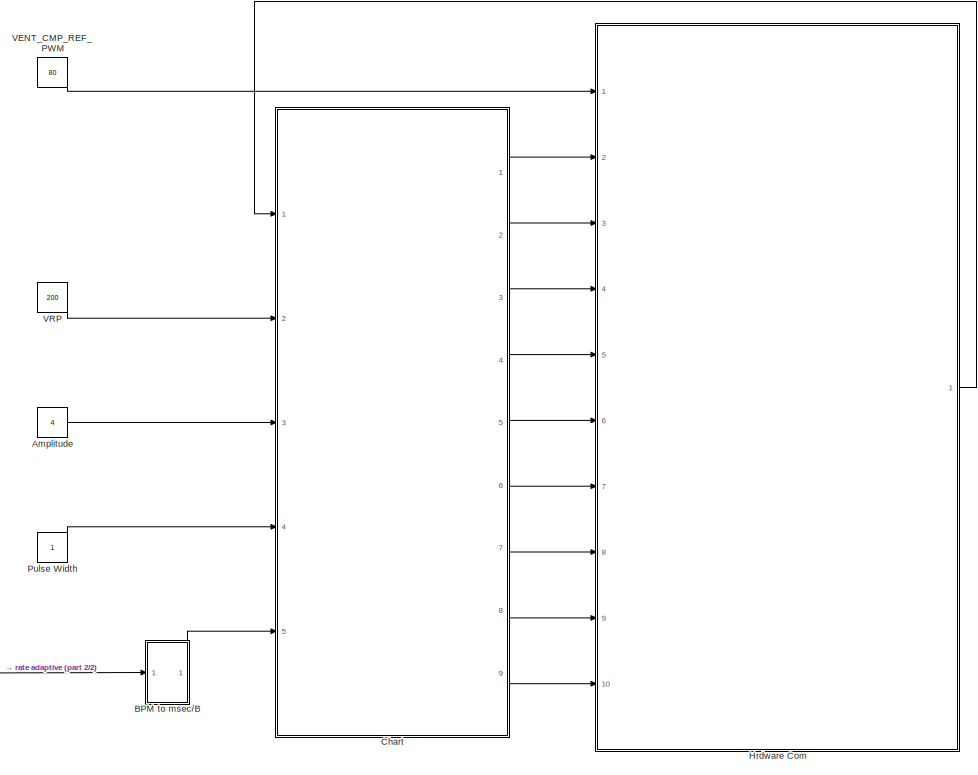
[diagram: root canvas - part 1/2, right side, full height]
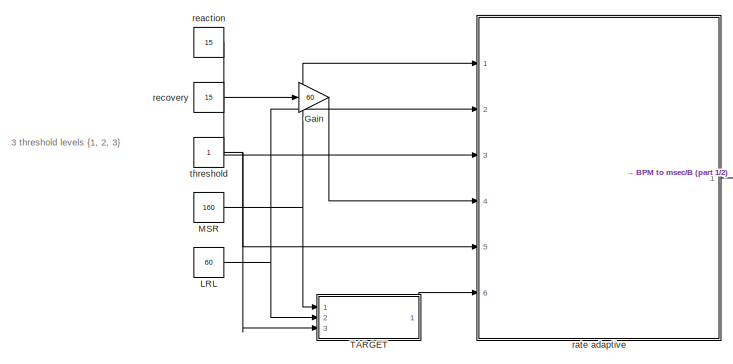
[diagram: root canvas - part 2/2, middle left region]
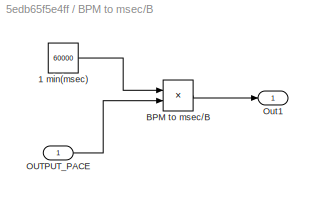
MODEL slx_5edb65f5e4ff
KIND model
CONFIG AbsTol = auto
CONFIG EnableMultiTasking = on
CONFIG FixedStep = 0.001
CONFIG MaxStep = auto
CONFIG MinStep = auto
CONFIG RelTol = 1e-3
CONFIG SampleTimeConstraint = Unconstrained
CONFIG SolverName = FixedStepAuto
CONFIG StartTime = 0.0
CONFIG StopTime = inf
BLOCK [Constant] Amplitude
  OutDataTypeStr = double
  Value = 4
BLOCK [SubSystem] BPM to msec//B 
  Ports = [1, 1]
  RequestExecContextInheritance = off
BLOCK [Constant] BPM to msec//B /1 min(msec)
  OutDataTypeStr = double
  Value = 60000
BLOCK [Product] BPM to msec//B /BPM to msec//B 
  Inputs = */
  OutDataTypeStr = uint16
  Ports = [2, 1]
  RndMeth = Nearest
BLOCK [Inport] BPM to msec//B /OUTPUT_PACE
BLOCK [Outport] BPM to msec//B /Out1
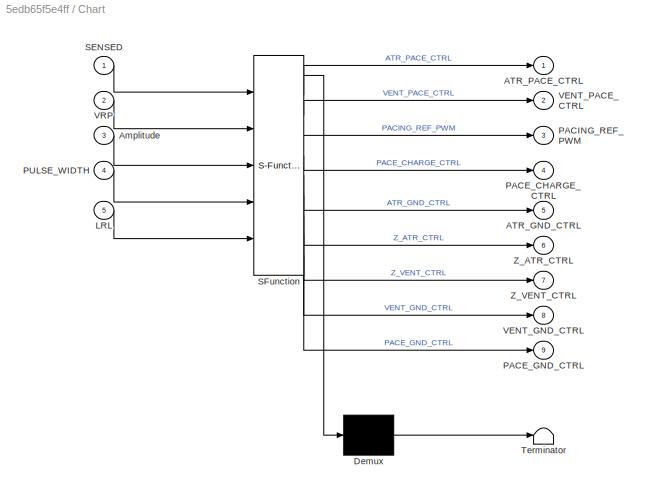
BLOCK [SubSystem] Chart
  ErrorFcn = Stateflow.Translate.translate
  PermitHierarchicalResolution = ExplicitOnly
  Ports = [5, 9]
  RequestExecContextInheritance = off
  SFBlockType = Chart
  TreatAsAtomicUnit = on
BLOCK [Demux] Chart/ Demux 
  Outputs = 1
  Ports = [1, 1]
BLOCK [S-Function] Chart/ SFunction 
  EnableBusSupport = off
  FunctionName = sf_sfun
  PortCounts = [5 10]
  Ports = [5, 10]
  SFcnIsStateOwnerBlock = off
  SFunctionDeploymentMode = off
  Tag = Stateflow S-Function 3
BLOCK [Terminator] Chart/ Terminator 
BLOCK [Outport] Chart/ATR_GND_CTRL
  Port = 5
BLOCK [Outport] Chart/ATR_PACE_CTRL
BLOCK [Inport] Chart/Amplitude
  Port = 3
BLOCK [Inport] Chart/LRL
  Port = 5
BLOCK [Outport] Chart/PACE_CHARGE_CTRL
  Port = 4
BLOCK [Outport] Chart/PACE_GND_CTRL
  Port = 9
BLOCK [Outport] Chart/PACING_REF_PWM
  Port = 3
BLOCK [Inport] Chart/PULSE_WIDTH
  Port = 4
BLOCK [Inport] Chart/SENSED
BLOCK [Outport] Chart/VENT_GND_CTRL
  Port = 8
BLOCK [Outport] Chart/VENT_PACE_CTRL
  Port = 2
BLOCK [Inport] Chart/VRP
  Port = 2
BLOCK [Outport] Chart/Z_ATR_CTRL
  Port = 6
BLOCK [Outport] Chart/Z_VENT_CTRL
  Port = 7
BLOCK [Gain] Gain
  Gain = 60
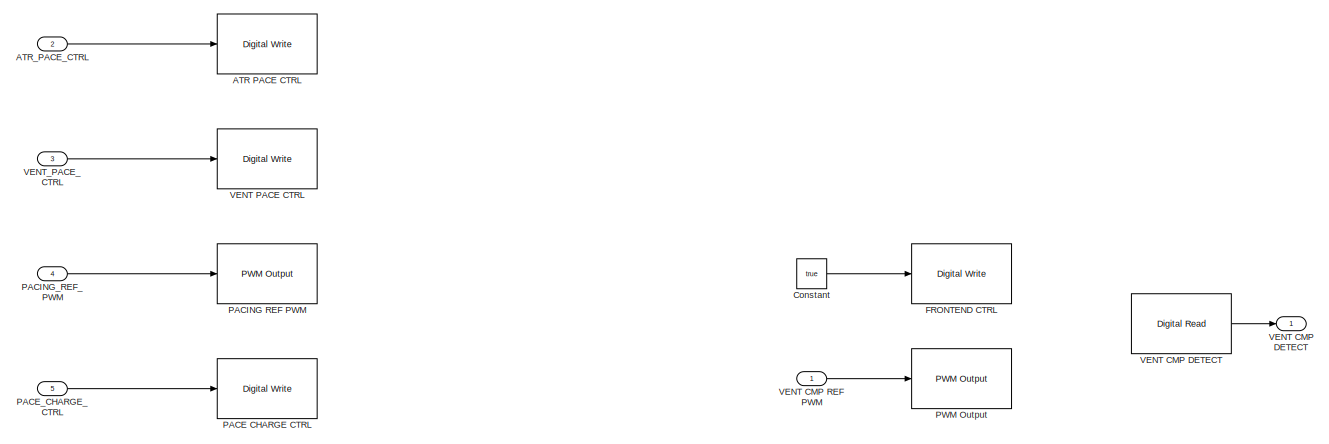
[diagram: Hrdware Com - part 1/2, full width, top band]
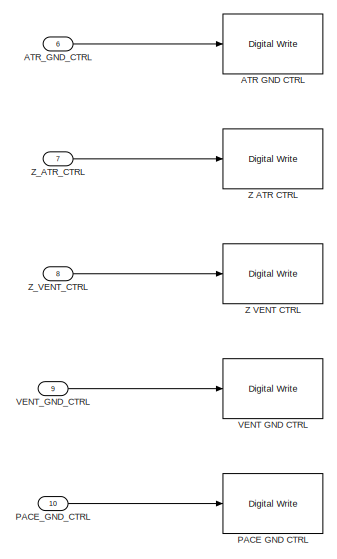
[diagram: Hrdware Com - part 2/2, bottom left region]
BLOCK [SubSystem] Hrdware Com
  Ports = [10, 1]
  RequestExecContextInheritance = off
BLOCK [Reference] Hrdware Com/ATR GND CTRL   REF=frdmk64flib/Digital Write
  Ports = [1]
  SourceBlock = frdmk64flib/Digital Write
  SourceProductBaseCode = EC_FRDM_K64F
  SourceType = freedomk64f.DigitalWrite
BLOCK [Reference] Hrdware Com/ATR PACE CTRL  REF=frdmk64flib/Digital Write
  Ports = [1]
  SourceBlock = frdmk64flib/Digital Write
  SourceProductBaseCode = EC_FRDM_K64F
  SourceType = freedomk64f.DigitalWrite
BLOCK [Inport] Hrdware Com/ATR_GND_CTRL
  Port = 6
BLOCK [Inport] Hrdware Com/ATR_PACE_CTRL
  Port = 2
BLOCK [Constant] Hrdware Com/Constant
  OutDataTypeStr = boolean
  Value = true
BLOCK [Reference] Hrdware Com/FRONTEND CTRL  REF=frdmk64flib/Digital Write
  Ports = [1]
  SourceBlock = frdmk64flib/Digital Write
  SourceProductBaseCode = EC_FRDM_K64F
  SourceType = freedomk64f.DigitalWrite
BLOCK [Reference] Hrdware Com/PACE CHARGE CTRL  REF=frdmk64flib/Digital Write
  Ports = [1]
  SourceBlock = frdmk64flib/Digital Write
  SourceProductBaseCode = EC_FRDM_K64F
  SourceType = freedomk64f.DigitalWrite
BLOCK [Reference] Hrdware Com/PACE GND CTRL  REF=frdmk64flib/Digital Write
  Ports = [1]
  SourceBlock = frdmk64flib/Digital Write
  SourceProductBaseCode = EC_FRDM_K64F
  SourceType = freedomk64f.DigitalWrite
BLOCK [Inport] Hrdware Com/PACE_CHARGE_CTRL
  Port = 5
BLOCK [Inport] Hrdware Com/PACE_GND_CTRL
  Port = 10
BLOCK [Reference] Hrdware Com/PACING REF PWM  REF=frdmk64flib/PWM Output
  Ports = [1]
  SourceBlock = frdmk64flib/PWM Output
  SourceProductBaseCode = EC_FRDM_K64F
  SourceType = freedomk64f.PWMOutput
BLOCK [Inport] Hrdware Com/PACING_REF_PWM
  Port = 4
BLOCK [Reference] Hrdware Com/PWM Output  REF=frdmk64flib/PWM Output
  Ports = [1]
  SourceBlock = frdmk64flib/PWM Output
  SourceProductBaseCode = EC_FRDM_K64F
  SourceType = freedomk64f.PWMOutput
BLOCK [Reference] Hrdware Com/VENT CMP DETECT  REF=frdmk64flib/Digital Read
  Ports = [0, 1]
  SourceBlock = frdmk64flib/Digital Read
  SourceProductBaseCode = EC_FRDM_K64F
  SourceType = freedomk64f.DigitalRead
BLOCK [Outport] Hrdware Com/VENT CMP DETECT 
  OutDataTypeStr = boolean
  PortDimensions = 1
BLOCK [Inport] Hrdware Com/VENT CMP REF PWM
BLOCK [Reference] Hrdware Com/VENT GND CTRL  REF=frdmk64flib/Digital Write
  Ports = [1]
  SourceBlock = frdmk64flib/Digital Write
  SourceProductBaseCode = EC_FRDM_K64F
  SourceType = freedomk64f.DigitalWrite
BLOCK [Reference] Hrdware Com/VENT PACE CTRL  REF=frdmk64flib/Digital Write
  Ports = [1]
  SourceBlock = frdmk64flib/Digital Write
  SourceProductBaseCode = EC_FRDM_K64F
  SourceType = freedomk64f.DigitalWrite
BLOCK [Inport] Hrdware Com/VENT_GND_CTRL
  Port = 9
BLOCK [Inport] Hrdware Com/VENT_PACE_CTRL
  Port = 3
BLOCK [Reference] Hrdware Com/Z ATR CTRL   REF=frdmk64flib/Digital Write
  Ports = [1]
  SourceBlock = frdmk64flib/Digital Write
  SourceProductBaseCode = EC_FRDM_K64F
  SourceType = freedomk64f.DigitalWrite
BLOCK [Reference] Hrdware Com/Z VENT CTRL   REF=frdmk64flib/Digital Write
  Ports = [1]
  SourceBlock = frdmk64flib/Digital Write
  SourceProductBaseCode = EC_FRDM_K64F
  SourceType = freedomk64f.DigitalWrite
BLOCK [Inport] Hrdware Com/Z_ATR_CTRL 
  Port = 7
BLOCK [Inport] Hrdware Com/Z_VENT_CTRL 
  Port = 8
BLOCK [Constant] LRL
  Value = 60
BLOCK [Constant] MSR
  Value = 160
BLOCK [Constant] Pulse Width
  OutDataTypeStr = uint16
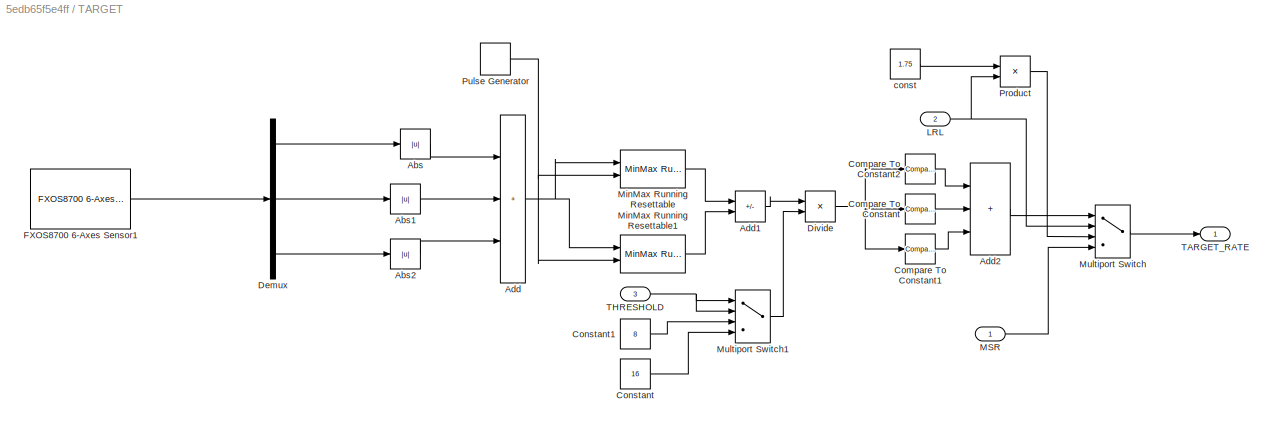
BLOCK [SubSystem] TARGET
  Ports = [3, 1]
  RequestExecContextInheritance = off
BLOCK [Abs] TARGET/Abs
  SaturateOnIntegerOverflow = off
BLOCK [Abs] TARGET/Abs1
  SaturateOnIntegerOverflow = off
BLOCK [Abs] TARGET/Abs2
  SaturateOnIntegerOverflow = off
BLOCK [Sum] TARGET/Add
  IconShape = rectangular
  Inputs = +++
  Ports = [3, 1]
BLOCK [Sum] TARGET/Add1
  IconShape = rectangular
  Inputs = +-
  Ports = [2, 1]
BLOCK [Sum] TARGET/Add2
  IconShape = rectangular
  Inputs = +++
  Ports = [3, 1]
BLOCK [Reference] TARGET/Compare To Constant  REF=simulink/Logic and Bit
Operations/Compare
To Constant
  Ports = [1, 1]
  SourceBlock = simulink/Logic and Bit\nOperations/Compare\nTo Constant
  SourceProductBaseCode = SL
  SourceType = Compare To Constant
BLOCK [Reference] TARGET/Compare To Constant1  REF=simulink/Logic and Bit
Operations/Compare
To Constant
  Ports = [1, 1]
  SourceBlock = simulink/Logic and Bit\nOperations/Compare\nTo Constant
  SourceProductBaseCode = SL
  SourceType = Compare To Constant
BLOCK [Reference] TARGET/Compare To Constant2  REF=simulink/Logic and Bit
Operations/Compare
To Constant
  Ports = [1, 1]
  SourceBlock = simulink/Logic and Bit\nOperations/Compare\nTo Constant
  SourceProductBaseCode = SL
  SourceType = Compare To Constant
BLOCK [Constant] TARGET/Constant
  OutDataTypeStr = single
  Value = 16
BLOCK [Constant] TARGET/Constant1
  OutDataTypeStr = single
  Value = 8
BLOCK [Demux] TARGET/Demux
  Outputs = 3
  Ports = [1, 3]
BLOCK [Product] TARGET/Divide
  Inputs = */
  Ports = [2, 1]
BLOCK [Reference] TARGET/FXOS8700 6-Axes Sensor1  REF=frdmk64flib/FXOS8700 6-Axes Sensor
  Ports = [0, 1]
  SourceBlock = frdmk64flib/FXOS8700 6-Axes Sensor
  SourceProductBaseCode = EC_FRDM_K64F
  SourceType = freedomk64f.fxos8700
BLOCK [Inport] TARGET/LRL
  Port = 2
BLOCK [Inport] TARGET/MSR
BLOCK [Reference] TARGET/MinMax Running Resettable  REF=simulink/Math
Operations/MinMax
Running
Resettable
  Ports = [2, 1]
  SourceBlock = simulink/Math\nOperations/MinMax\nRunning\nResettable
  SourceProductBaseCode = SL
  SourceType = MinMax Running Resettable
BLOCK [Reference] TARGET/MinMax Running Resettable1  REF=simulink/Math
Operations/MinMax
Running
Resettable
  Ports = [2, 1]
  SourceBlock = simulink/Math\nOperations/MinMax\nRunning\nResettable
  SourceProductBaseCode = SL
  SourceType = MinMax Running Resettable
BLOCK [MultiPortSwitch] TARGET/Multiport Switch
  InputSameDT = off
  OutDataTypeStr = double
  Ports = [4, 1]
  SaturateOnIntegerOverflow = off
BLOCK [MultiPortSwitch] TARGET/Multiport Switch1
  InputSameDT = off
  Ports = [4, 1]
  SaturateOnIntegerOverflow = off
BLOCK [Product] TARGET/Product
  Ports = [2, 1]
BLOCK [DiscretePulseGenerator] TARGET/Pulse Generator
  Ports = [0, 1]
  PulseType = Time based
  PulseWidth = 2.5
BLOCK [Outport] TARGET/TARGET_RATE
BLOCK [Inport] TARGET/THRESHOLD
  Port = 3
BLOCK [Constant] TARGET/const
  Value = 1.75
BLOCK [Constant] VENT_CMP_REF_PWM
  OutDataTypeStr = double
  Value = 80
BLOCK [Constant] VRP
  OutDataTypeStr = uint16
  Value = 200
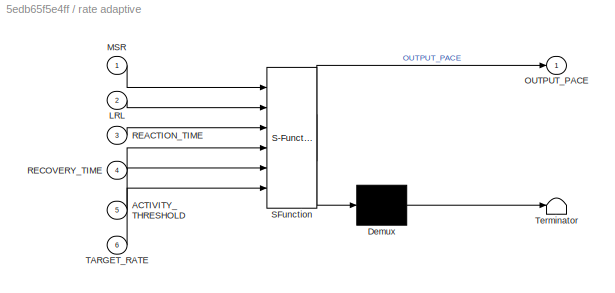
BLOCK [SubSystem] rate adaptive
  ErrorFcn = Stateflow.Translate.translate
  PermitHierarchicalResolution = ExplicitOnly
  PortSchema = {"entries":[{"content":{"sides":[{"content":{"connectorIds":["In3","In4","In5","In1","In2","In6"]},"type":"ConnectorPlacement.EquallySpacedRectSide","uuid":"d3aa46b7-da68-4733-bd03-102d604fce17"},{"content":{"connectorIds":["Out1"],"side":"RIGHT"},"type":"ConnectorPlacement.EquallySpacedRectSide","uuid":"afbb636e-6b76-41fa-bb75-ca0d3f63044e"},{"content":{"connectorIds":[],"side":"TOP"},"type":"Con...<+270ch>
  Ports = [6, 1]
  RequestExecContextInheritance = off
  SFBlockType = Chart
  TreatAsAtomicUnit = on
BLOCK [Demux] rate adaptive/ Demux 
  Outputs = 1
  Ports = [1, 1]
BLOCK [S-Function] rate adaptive/ SFunction 
  EnableBusSupport = on
  FunctionName = sf_sfun
  PortCounts = [6 2]
  Ports = [6, 2]
  SFcnIsStateOwnerBlock = off
  SFunctionDeploymentMode = off
  Tag = Stateflow S-Function 1
BLOCK [Terminator] rate adaptive/ Terminator 
BLOCK [Inport] rate adaptive/ACTIVITY_THRESHOLD
  Port = 5
BLOCK [Inport] rate adaptive/LRL
  Port = 2
BLOCK [Inport] rate adaptive/MSR
BLOCK [Outport] rate adaptive/OUTPUT_PACE
BLOCK [Inport] rate adaptive/REACTION_TIME
  Port = 3
BLOCK [Inport] rate adaptive/RECOVERY_TIME
  Port = 4
BLOCK [Inport] rate adaptive/TARGET_RATE
  Port = 6
BLOCK [Constant] reaction
  OutDataTypeStr = double
  Value = 15
BLOCK [Constant] recovery
  OutDataTypeStr = double
  Value = 15
BLOCK [Constant] threshold
  OutDataTypeStr = single
ANNOTATION (root): 3 threshold levels {1, 2, 3}
LINE Amplitude:1 -> Chart:3
LINE BPM to msec//B /1 min(msec):1 -> BPM to msec//B /BPM to msec//B :1
LINE BPM to msec//B /BPM to msec//B :1 -> BPM to msec//B /Out1:1
LINE BPM to msec//B /OUTPUT_PACE:1 -> BPM to msec//B /BPM to msec//B :2
LINE BPM to msec//B :1 -> Chart:5
LINE Chart:1 -> Hrdware Com:2
LINE Chart:2 -> Hrdware Com:3
LINE Chart:3 -> Hrdware Com:4
LINE Chart:4 -> Hrdware Com:5
LINE Chart:5 -> Hrdware Com:6
LINE Chart:6 -> Hrdware Com:7
LINE Chart:7 -> Hrdware Com:8
LINE Chart:8 -> Hrdware Com:9
LINE Chart:9 -> Hrdware Com:10
LINE Gain:1 -> rate adaptive:4
LINE Hrdware Com/ATR_GND_CTRL:1 -> Hrdware Com/ATR GND CTRL :1
LINE Hrdware Com/ATR_PACE_CTRL:1 -> Hrdware Com/ATR PACE CTRL:1
LINE Hrdware Com/Constant:1 -> Hrdware Com/FRONTEND CTRL:1
LINE Hrdware Com/PACE_CHARGE_CTRL:1 -> Hrdware Com/PACE CHARGE CTRL:1
LINE Hrdware Com/PACE_GND_CTRL:1 -> Hrdware Com/PACE GND CTRL:1
LINE Hrdware Com/PACING_REF_PWM:1 -> Hrdware Com/PACING REF PWM:1
LINE Hrdware Com/VENT CMP DETECT:1 -> Hrdware Com/VENT CMP DETECT :1
LINE Hrdware Com/VENT CMP REF PWM:1 -> Hrdware Com/PWM Output:1
LINE Hrdware Com/VENT_GND_CTRL:1 -> Hrdware Com/VENT GND CTRL:1
LINE Hrdware Com/VENT_PACE_CTRL:1 -> Hrdware Com/VENT PACE CTRL:1
LINE Hrdware Com/Z_ATR_CTRL :1 -> Hrdware Com/Z ATR CTRL :1
LINE Hrdware Com/Z_VENT_CTRL :1 -> Hrdware Com/Z VENT CTRL :1
LINE Hrdware Com:1 -> Chart:1
NET LRL:1 -> TARGET:2, rate adaptive:2
NET MSR:1 -> TARGET:1, rate adaptive:1
LINE Pulse Width:1 -> Chart:4
LINE TARGET/Abs1:1 -> TARGET/Add:2
LINE TARGET/Abs2:1 -> TARGET/Add:3
LINE TARGET/Abs:1 -> TARGET/Add:1
LINE TARGET/Add1:1 -> TARGET/Divide:1
LINE TARGET/Add2:1 -> TARGET/Multiport Switch:1
NET TARGET/Add:1 -> TARGET/MinMax Running Resettable1:1, TARGET/MinMax Running Resettable:1
LINE TARGET/Compare To Constant1:1 -> TARGET/Add2:3
LINE TARGET/Compare To Constant2:1 -> TARGET/Add2:1
LINE TARGET/Compare To Constant:1 -> TARGET/Add2:2
LINE TARGET/Constant1:1 -> TARGET/Multiport Switch1:3
LINE TARGET/Constant:1 -> TARGET/Multiport Switch1:4
LINE TARGET/Demux:1 -> TARGET/Abs:1
LINE TARGET/Demux:2 -> TARGET/Abs1:1
LINE TARGET/Demux:3 -> TARGET/Abs2:1
NET TARGET/Divide:1 -> TARGET/Compare To Constant1:1, TARGET/Compare To Constant2:1, TARGET/Compare To Constant:1
LINE TARGET/FXOS8700 6-Axes Sensor1:1 -> TARGET/Demux:1
NET TARGET/LRL:1 -> TARGET/Multiport Switch:2, TARGET/Product:2
LINE TARGET/MSR:1 -> TARGET/Multiport Switch:4
LINE TARGET/MinMax Running Resettable1:1 -> TARGET/Add1:2
LINE TARGET/MinMax Running Resettable:1 -> TARGET/Add1:1
LINE TARGET/Multiport Switch1:1 -> TARGET/Divide:2
LINE TARGET/Multiport Switch:1 -> TARGET/TARGET_RATE:1
LINE TARGET/Product:1 -> TARGET/Multiport Switch:3
NET TARGET/Pulse Generator:1 -> TARGET/MinMax Running Resettable1:2, TARGET/MinMax Running Resettable:2
NET TARGET/THRESHOLD:1 -> TARGET/Multiport Switch1:1, TARGET/Multiport Switch1:2
LINE TARGET/const:1 -> TARGET/Product:1
LINE TARGET:1 -> rate adaptive:6
LINE VENT_CMP_REF_PWM:1 -> Hrdware Com:1
LINE VRP:1 -> Chart:2
LINE rate adaptive:1 -> BPM to msec//B :1
LINE reaction:1 -> rate adaptive:3
LINE recovery:1 -> Gain:1
NET threshold:1 -> TARGET:3, rate adaptive:5
note: NET lines group one-source signal fan-out (src -> all destinations, sorted); 1:1 wires keep LINE
CHART Chart states=2 transitions=8
  STATE_LABEL 'Charging_and_Discharging\n\nentry:\nPACE_GND_CTRL=true;\nATR_PACE_CTRL=false;\nVENT_PACE_CTRL=false;\nPACING_REF_PWM=uint8(Amplitude*20);\nPACE_CHARGE_CTRL=true;\nZ_ATR_CTRL=false;\nZ_VENT_CTRL=false;\nATR_GND_CTRL=false;\nVENT_GND_CTRL=true;'
  STATE_LABEL 'V_Pacing\n\nentry:\nPACE_CHARGE_CTRL=false;\nPACE_GND_CTRL=true;\nATR_GND_CTRL=false;\nZ_ATR_CTRL=false;\nZ_VENT_CTRL=false;\nVENT_GND_CTRL=false;\nATR_PACE_CTRL=false;\nVENT_PACE_CTRL=true;\nPACED=true;'
CHART rate adaptive states=6 transitions=10
  STATE_LABEL 'start\n\nentry:\nOUTPUT_PACE = LRL;'
  STATE_LABEL 'IDLE'
  STATE_LABEL 'increase_pace\n\nentry:\nOUTPUT_PACE = OUTPUT_PACE + increment;'
  STATE_LABEL 'calculate_increment\n\nentry:\nincrement = 2.5*(TARGET_RATE-OUTPUT_PACE) / REACTION_TIME;'
  STATE_LABEL 'calculate_decrement\n\nentry:\ndecrement = (OUTPUT_PACE - TARGET_RATE) / RECOVERY_TIME;'
  STATE_LABEL 'decrease_pace\n\nentry:\nOUTPUT_PACE = OUTPUT_PACE - decrement;'
CHART  states=0 transitions=0
CHART  states=0 transitions=0
